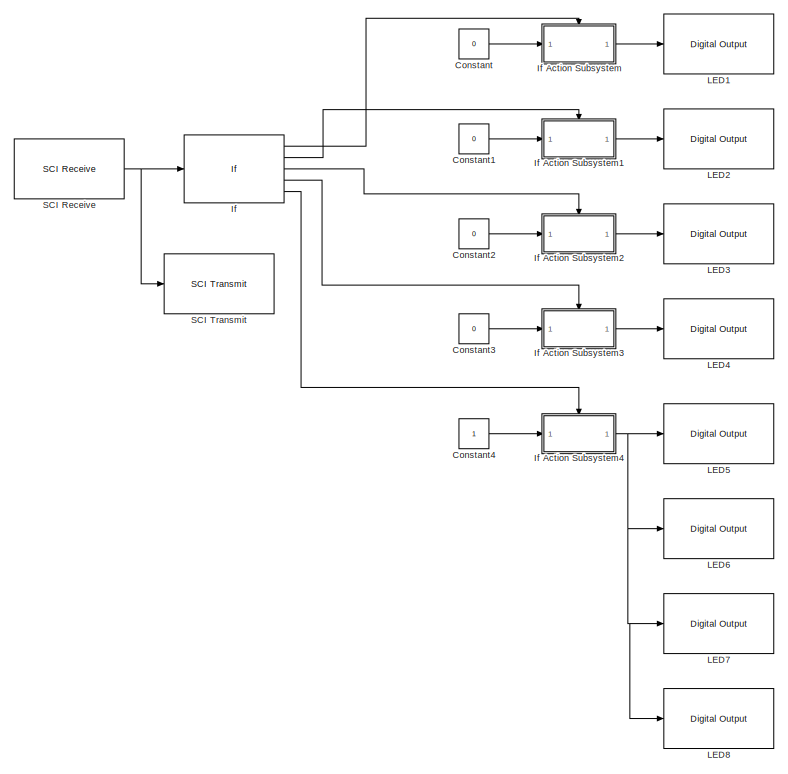
[diagram: root canvas - part 1/2, right side, full height]
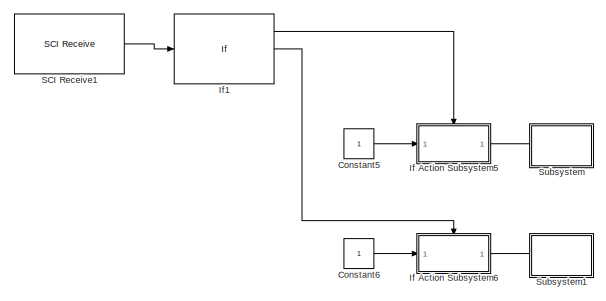
[diagram: root canvas - part 2/2, top left region]
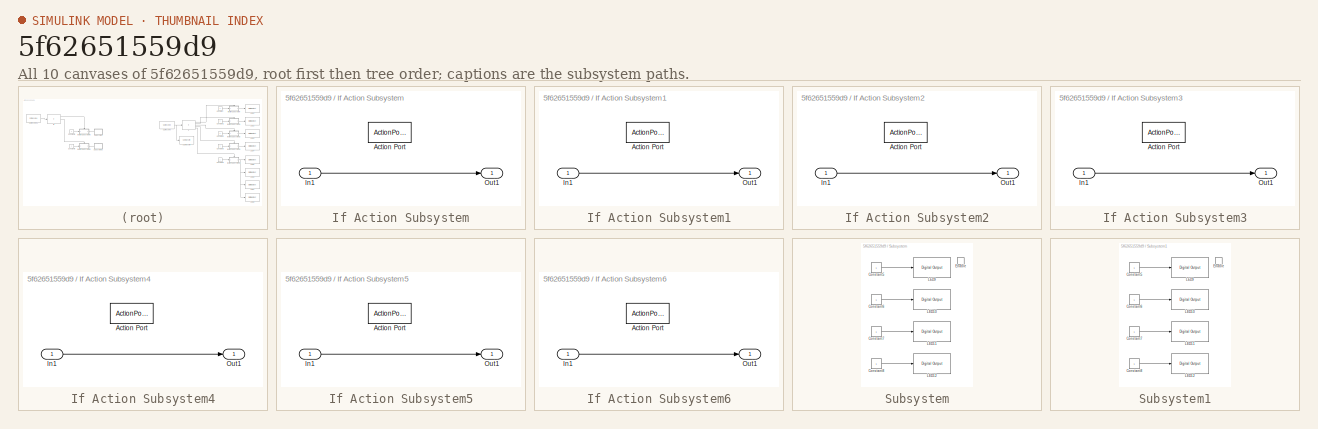
[diagram: thumbnail index - all 10 canvases of the model, root first then tree order]
MODEL slx_5f62651559d9
KIND model
CONFIG AbsTol = auto
CONFIG EnableMultiTasking = on
CONFIG FixedStep = auto
CONFIG MaxStep = auto
CONFIG MinStep = auto
CONFIG RelTol = 1e-3
CONFIG SampleTimeConstraint = Unconstrained
CONFIG Solver = FixedStepDiscrete
CONFIG SolverName = FixedStepDiscrete
CONFIG StartTime = 0.0
CONFIG StopTime = 10.0
BLOCK [Constant] Constant
  Commented = on
  OutDataTypeStr = boolean
  Value = 0
BLOCK [Constant] Constant1
  Commented = on
  OutDataTypeStr = boolean
  Value = 0
BLOCK [Constant] Constant2
  Commented = on
  OutDataTypeStr = boolean
  Value = 0
BLOCK [Constant] Constant3
  Commented = on
  OutDataTypeStr = boolean
  Value = 0
BLOCK [Constant] Constant4
  Commented = on
  OutDataTypeStr = boolean
BLOCK [Constant] Constant5
  OutDataTypeStr = boolean
  SampleTime = -1
BLOCK [Constant] Constant6
  OutDataTypeStr = boolean
  SampleTime = -1
BLOCK [If] If
  Commented = on
  ElseIfExpressions = u1 ==50,u1==51,u1==52
  IfExpression = u1 == 49
  Ports = [1, 5]
BLOCK [SubSystem] If Action Subsystem
  Commented = on
  Ports = [1, 1, 0, 0, 0, 0, 0, 1]
  RequestExecContextInheritance = off
  TreatAsAtomicUnit = on
  Variant = off
BLOCK [ActionPort] If Action Subsystem/Action Port
  ActionType = then
BLOCK [Inport] If Action Subsystem/In1
  IconDisplay = Port number
BLOCK [Outport] If Action Subsystem/Out1
  IconDisplay = Port number
BLOCK [SubSystem] If Action Subsystem1
  Commented = on
  Ports = [1, 1, 0, 0, 0, 0, 0, 1]
  RequestExecContextInheritance = off
  TreatAsAtomicUnit = on
  Variant = off
BLOCK [ActionPort] If Action Subsystem1/Action Port
  ActionType = elseif
BLOCK [Inport] If Action Subsystem1/In1
  IconDisplay = Port number
BLOCK [Outport] If Action Subsystem1/Out1
  IconDisplay = Port number
BLOCK [SubSystem] If Action Subsystem2
  Commented = on
  Ports = [1, 1, 0, 0, 0, 0, 0, 1]
  RequestExecContextInheritance = off
  TreatAsAtomicUnit = on
  Variant = off
BLOCK [ActionPort] If Action Subsystem2/Action Port
  ActionType = elseif
BLOCK [Inport] If Action Subsystem2/In1
  IconDisplay = Port number
BLOCK [Outport] If Action Subsystem2/Out1
  IconDisplay = Port number
BLOCK [SubSystem] If Action Subsystem3
  Commented = on
  Ports = [1, 1, 0, 0, 0, 0, 0, 1]
  RequestExecContextInheritance = off
  TreatAsAtomicUnit = on
  Variant = off
BLOCK [ActionPort] If Action Subsystem3/Action Port
  ActionType = elseif
BLOCK [Inport] If Action Subsystem3/In1
  IconDisplay = Port number
BLOCK [Outport] If Action Subsystem3/Out1
  IconDisplay = Port number
BLOCK [SubSystem] If Action Subsystem4
  Commented = on
  Ports = [1, 1, 0, 0, 0, 0, 0, 1]
  RequestExecContextInheritance = off
  TreatAsAtomicUnit = on
  Variant = off
BLOCK [ActionPort] If Action Subsystem4/Action Port
  ActionType = else
BLOCK [Inport] If Action Subsystem4/In1
  IconDisplay = Port number
BLOCK [Outport] If Action Subsystem4/Out1
  IconDisplay = Port number
BLOCK [SubSystem] If Action Subsystem5
  Ports = [1, 1, 0, 0, 0, 0, 0, 1]
  RequestExecContextInheritance = off
  TreatAsAtomicUnit = on
  Variant = off
BLOCK [ActionPort] If Action Subsystem5/Action Port
  ActionType = then
BLOCK [Inport] If Action Subsystem5/In1
  IconDisplay = Port number
BLOCK [Outport] If Action Subsystem5/Out1
  IconDisplay = Port number
BLOCK [SubSystem] If Action Subsystem6
  Ports = [1, 1, 0, 0, 0, 0, 0, 1]
  RequestExecContextInheritance = off
  TreatAsAtomicUnit = on
  Variant = off
BLOCK [ActionPort] If Action Subsystem6/Action Port
  ActionType = elseif
BLOCK [Inport] If Action Subsystem6/In1
  IconDisplay = Port number
BLOCK [Outport] If Action Subsystem6/Out1
  IconDisplay = Port number
BLOCK [If] If1
  ElseIfExpressions = u1==50
  IfExpression = u1 == 49
  Ports = [1, 3]
BLOCK [Reference] LED1  REF=c2802xlib/Digital Output
  Commented = on
  Ports = [1]
  SourceBlock = c2802xlib/Digital Output
  SourceType = C2802x GPIO Digital Output
  UserDataPersistent = on
BLOCK [Reference] LED2  REF=c2802xlib/Digital Output
  Commented = on
  Ports = [1]
  SourceBlock = c2802xlib/Digital Output
  SourceType = C2802x GPIO Digital Output
  UserDataPersistent = on
BLOCK [Reference] LED3  REF=c2802xlib/Digital Output
  Commented = on
  Ports = [1]
  SourceBlock = c2802xlib/Digital Output
  SourceType = C2802x GPIO Digital Output
  UserDataPersistent = on
BLOCK [Reference] LED4  REF=c2802xlib/Digital Output
  Commented = on
  Ports = [1]
  SourceBlock = c2802xlib/Digital Output
  SourceType = C2802x GPIO Digital Output
  UserDataPersistent = on
BLOCK [Reference] LED5  REF=c2802xlib/Digital Output
  Commented = on
  Ports = [1]
  SourceBlock = c2802xlib/Digital Output
  SourceType = C2802x GPIO Digital Output
  UserDataPersistent = on
BLOCK [Reference] LED6  REF=c2802xlib/Digital Output
  Commented = on
  Ports = [1]
  SourceBlock = c2802xlib/Digital Output
  SourceType = C2802x GPIO Digital Output
  UserDataPersistent = on
BLOCK [Reference] LED7  REF=c2802xlib/Digital Output
  Commented = on
  Ports = [1]
  SourceBlock = c2802xlib/Digital Output
  SourceType = C2802x GPIO Digital Output
  UserDataPersistent = on
BLOCK [Reference] LED8  REF=c2802xlib/Digital Output
  Commented = on
  Ports = [1]
  SourceBlock = c2802xlib/Digital Output
  SourceType = C2802x GPIO Digital Output
  UserDataPersistent = on
BLOCK [Reference] SCI Receive  REF=c280xlib/SCI Receive
  Commented = on
  Ports = [0, 1]
  SourceBlock = c280xlib/SCI Receive
  SourceType = C28x SCI Receive
BLOCK [Reference] SCI Receive1  REF=c280xlib/SCI Receive
  Ports = [0, 1]
  SourceBlock = c280xlib/SCI Receive
  SourceType = C28x SCI Receive
BLOCK [Reference] SCI Transmit  REF=c280xlib/SCI Transmit
  Commented = on
  Ports = [1]
  SourceBlock = c280xlib/SCI Transmit
  SourceType = C28x SCI Transmit
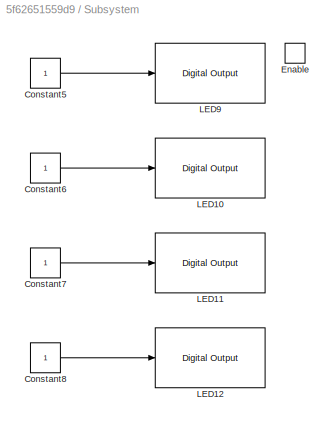
BLOCK [SubSystem] Subsystem
  Ports = [0, 0, 1]
  RequestExecContextInheritance = off
  Variant = off
BLOCK [Constant] Subsystem/Constant5
  SampleTime = 0.5
BLOCK [Constant] Subsystem/Constant6
  SampleTime = 0.6
BLOCK [Constant] Subsystem/Constant7
  SampleTime = 0.7
BLOCK [Constant] Subsystem/Constant8
  SampleTime = 0.8
BLOCK [EnablePort] Subsystem/Enable
  Ports = []
BLOCK [Reference] Subsystem/LED10  REF=c2802xlib/Digital Output
  Ports = [1]
  SourceBlock = c2802xlib/Digital Output
  SourceType = C2802x GPIO Digital Output
  UserDataPersistent = on
BLOCK [Reference] Subsystem/LED11  REF=c2802xlib/Digital Output
  Ports = [1]
  SourceBlock = c2802xlib/Digital Output
  SourceType = C2802x GPIO Digital Output
  UserDataPersistent = on
BLOCK [Reference] Subsystem/LED12  REF=c2802xlib/Digital Output
  Ports = [1]
  SourceBlock = c2802xlib/Digital Output
  SourceType = C2802x GPIO Digital Output
  UserDataPersistent = on
BLOCK [Reference] Subsystem/LED9  REF=c2802xlib/Digital Output
  Ports = [1]
  SourceBlock = c2802xlib/Digital Output
  SourceType = C2802x GPIO Digital Output
  UserDataPersistent = on
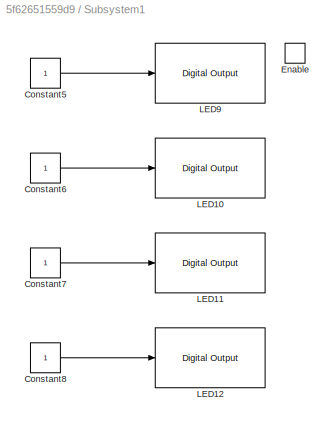
BLOCK [SubSystem] Subsystem1
  Ports = [0, 0, 1]
  RequestExecContextInheritance = off
  Variant = off
BLOCK [Constant] Subsystem1/Constant5
  OutDataTypeStr = boolean
BLOCK [Constant] Subsystem1/Constant6
  OutDataTypeStr = boolean
BLOCK [Constant] Subsystem1/Constant7
  OutDataTypeStr = boolean
BLOCK [Constant] Subsystem1/Constant8
  OutDataTypeStr = boolean
BLOCK [EnablePort] Subsystem1/Enable
  Ports = []
BLOCK [Reference] Subsystem1/LED10  REF=c2802xlib/Digital Output
  Ports = [1]
  SourceBlock = c2802xlib/Digital Output
  SourceType = C2802x GPIO Digital Output
  UserDataPersistent = on
BLOCK [Reference] Subsystem1/LED11  REF=c2802xlib/Digital Output
  Ports = [1]
  SourceBlock = c2802xlib/Digital Output
  SourceType = C2802x GPIO Digital Output
  UserDataPersistent = on
BLOCK [Reference] Subsystem1/LED12  REF=c2802xlib/Digital Output
  Ports = [1]
  SourceBlock = c2802xlib/Digital Output
  SourceType = C2802x GPIO Digital Output
  UserDataPersistent = on
BLOCK [Reference] Subsystem1/LED9  REF=c2802xlib/Digital Output
  Ports = [1]
  SourceBlock = c2802xlib/Digital Output
  SourceType = C2802x GPIO Digital Output
  UserDataPersistent = on
LINE Constant1:1 -> If Action Subsystem1:1
LINE Constant2:1 -> If Action Subsystem2:1
LINE Constant3:1 -> If Action Subsystem3:1
LINE Constant4:1 -> If Action Subsystem4:1
LINE Constant5:1 -> If Action Subsystem5:1
LINE Constant6:1 -> If Action Subsystem6:1
LINE Constant:1 -> If Action Subsystem:1
LINE If Action Subsystem/In1:1 -> If Action Subsystem/Out1:1
LINE If Action Subsystem1/In1:1 -> If Action Subsystem1/Out1:1
LINE If Action Subsystem1:1 -> LED2:1
LINE If Action Subsystem2/In1:1 -> If Action Subsystem2/Out1:1
LINE If Action Subsystem2:1 -> LED3:1
LINE If Action Subsystem3/In1:1 -> If Action Subsystem3/Out1:1
LINE If Action Subsystem3:1 -> LED4:1
LINE If Action Subsystem4/In1:1 -> If Action Subsystem4/Out1:1
NET If Action Subsystem4:1 -> LED5:1, LED6:1, LED7:1, LED8:1
LINE If Action Subsystem5/In1:1 -> If Action Subsystem5/Out1:1
LINE If Action Subsystem5:1 -> Subsystem:enable
LINE If Action Subsystem6/In1:1 -> If Action Subsystem6/Out1:1
LINE If Action Subsystem6:1 -> Subsystem1:enable
LINE If Action Subsystem:1 -> LED1:1
LINE If1:1 -> If Action Subsystem5:ifaction
LINE If1:2 -> If Action Subsystem6:ifaction
LINE If:1 -> If Action Subsystem:ifaction
LINE If:2 -> If Action Subsystem1:ifaction
LINE If:3 -> If Action Subsystem2:ifaction
LINE If:4 -> If Action Subsystem3:ifaction
LINE If:5 -> If Action Subsystem4:ifaction
LINE SCI Receive1:1 -> If1:1
NET SCI Receive:1 -> If:1, SCI Transmit:1
LINE Subsystem/Constant5:1 -> Subsystem/LED9:1
LINE Subsystem/Constant6:1 -> Subsystem/LED10:1
LINE Subsystem/Constant7:1 -> Subsystem/LED11:1
LINE Subsystem/Constant8:1 -> Subsystem/LED12:1
LINE Subsystem1/Constant5:1 -> Subsystem1/LED9:1
LINE Subsystem1/Constant6:1 -> Subsystem1/LED10:1
LINE Subsystem1/Constant7:1 -> Subsystem1/LED11:1
LINE Subsystem1/Constant8:1 -> Subsystem1/LED12:1
note: NET lines group one-source signal fan-out (src -> all destinations, sorted); 1:1 wires keep LINE
